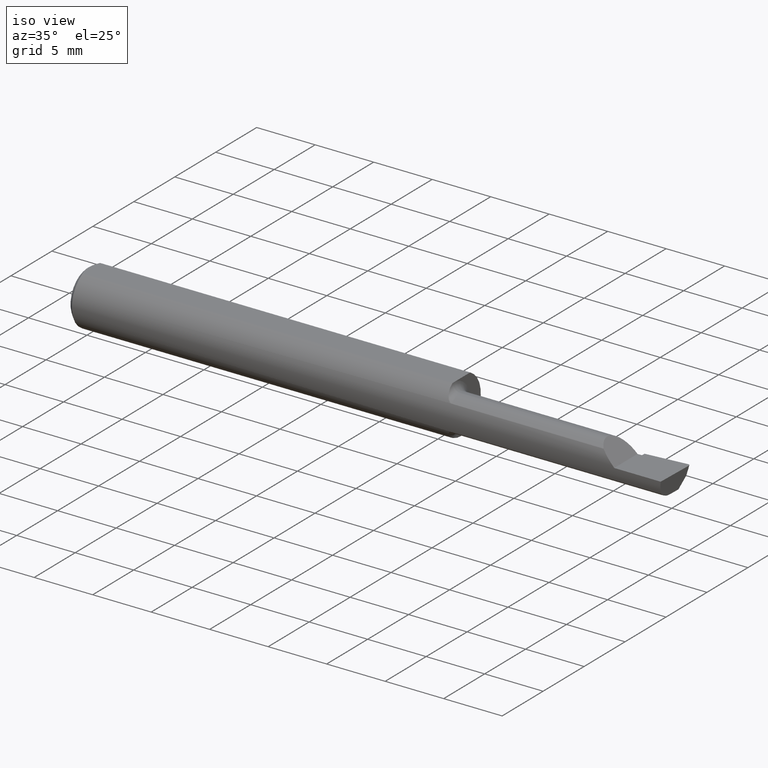
[diagram: clean part render]
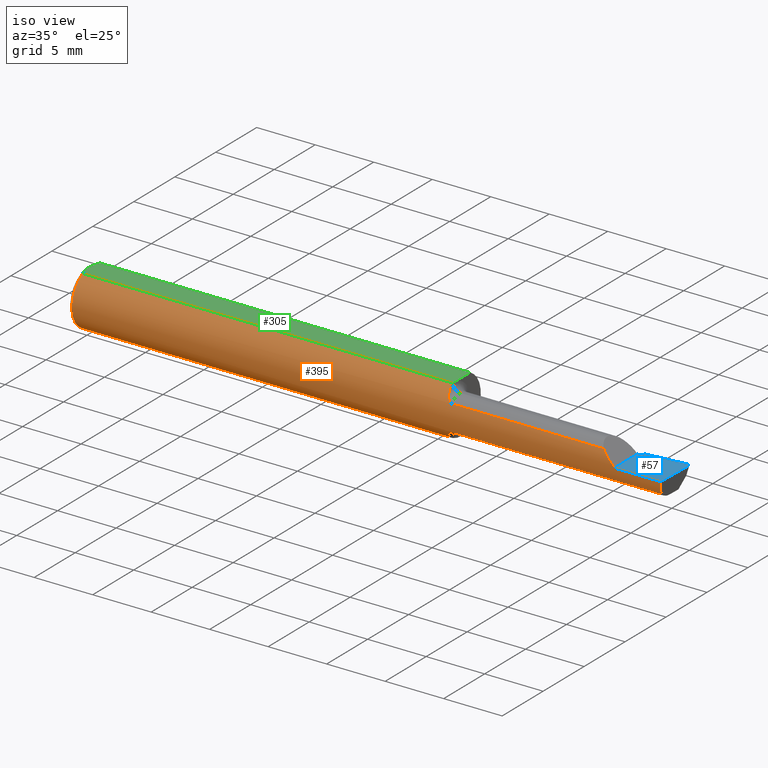
[diagram: same view with three faces highlighted in distinct colors, each labeled with its STEP entity id]
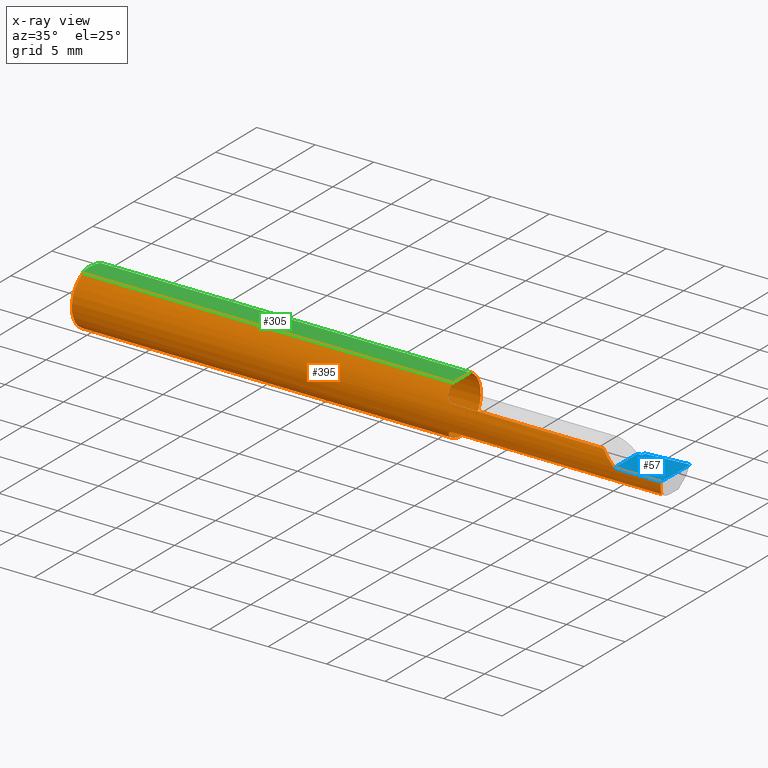
[diagram: x-ray of the same camera — body ghosted, the three highlighted faces saturated]
A machine part, iso view with three faces highlighted in distinct colors.
The next image is the same camera in x-ray (body ghosted, the three faces saturated) — at least one of them is partly hidden behind the body in this view.
Their STEP definitions:

[orange] entity #395 — the highlighted cylindrical surface (edge-blend (fillet) strip) has radius 2.3774 mm, axis along (-1, -0, -0).
#13 = EDGE_CURVE ( 'NONE', #111, #15, #19, .T. ) ;
#14 = CYLINDRICAL_SURFACE ( 'NONE', #185, 0.09360000000000001652 ) ;
#15 = VERTEX_POINT ( 'NONE', #342 ) ;
#19 =( BOUNDED_CURVE ( )  B_SPLINE_CURVE ( 3, ( #313, #507, #203, #131 ),
 .UNSPECIFIED., .F., .T. ) 
 B_SPLINE_CURVE_WITH_KNOTS ( ( 4, 4 ),
 ( 0.8819507499627846636, 1.360746882514781042 ),
 .UNSPECIFIED. ) 
 CURVE ( )  GEOMETRIC_REPRESENTATION_ITEM ( )  RATIONAL_B_SPLINE_CURVE ( ( 1.000000000000000000, 0.9809872534005956712, 0.9809872534005956712, 1.000000000000000000 ) ) 
 REPRESENTATION_ITEM ( '' )  );
#33 = CARTESIAN_POINT ( 'NONE',  ( 1.260121283746728604, -0.04659318327468391085, -0.08137765652544191874 ) ) ;
#34 = CARTESIAN_POINT ( 'NONE',  ( 1.569999999999999840, -0.08307469879518077083, -0.04312255117789288994 ) ) ;
#35 = CARTESIAN_POINT ( 'NONE',  ( 1.260006719116742557, -0.04082489400077272956, -0.08423096411932437522 ) ) ;
#40 = CARTESIAN_POINT ( 'NONE',  ( 1.260000000000000009, -0.04014498638740782166, -0.08455714216888012003 ) ) ;
#65 = CARTESIAN_POINT ( 'NONE',  ( 1.260000000000000009, -0.03946024096385555846, -0.08487549341873928954 ) ) ;
#73 = ORIENTED_EDGE ( 'NONE', *, *, #670, .T. ) ;
#86 = CARTESIAN_POINT ( 'NONE',  ( 0.01499999999999999598, 0.0000000000000000000, 0.0000000000000000000 ) ) ;
#95 = EDGE_LOOP ( 'NONE', ( #631, #499, #143, #73, #709, #354, #351, #378, #187, #657, #216, #164, #308 ) ) ;
#99 = CARTESIAN_POINT ( 'NONE',  ( 1.824917075065774830, -0.09360000000000001652, 0.01508292493422499526 ) ) ;
#101 = EDGE_CURVE ( 'NONE', #623, #433, #225, .T. ) ;
#104 = LINE ( 'NONE', #338, #390 ) ;
#111 = VERTEX_POINT ( 'NONE', #591 ) ;
#120 = AXIS2_PLACEMENT_3D ( 'NONE', #86, #205, #421 ) ;
#130 = DIRECTION ( 'NONE',  ( -1.000000000000000000, -0.0000000000000000000, -0.0000000000000000000 ) ) ;
#131 = CARTESIAN_POINT ( 'NONE',  ( 1.996386342823452065, -0.09360000000000009979, -6.634435288474567089E-17 ) ) ;
#133 = CARTESIAN_POINT ( 'NONE',  ( 1.269277238843646405, -0.07518688180277831312, 0.05595855205935828386 ) ) ;
#134 = CARTESIAN_POINT ( 'NONE',  ( 1.260020127471513041, -0.04150000000000001604, -0.08389702020930184245 ) ) ;
#139 = VERTEX_POINT ( 'NONE', #261 ) ;
#143 = ORIENTED_EDGE ( 'NONE', *, *, #178, .T. ) ;
#144 = CARTESIAN_POINT ( 'NONE',  ( 0.0000000000000000000, 0.0000000000000000000, 0.0000000000000000000 ) ) ;
#148 =( BOUNDED_CURVE ( )  B_SPLINE_CURVE ( 3, ( #485, #99, #589, #278 ),
 .UNSPECIFIED., .F., .T. ) 
 B_SPLINE_CURVE_WITH_KNOTS ( ( 4, 4 ),
 ( 4.712388980384689674, 5.191185112936686608 ),
 .UNSPECIFIED. ) 
 CURVE ( )  GEOMETRIC_REPRESENTATION_ITEM ( )  RATIONAL_B_SPLINE_CURVE ( ( 1.000000000000000000, 0.9809872534005956712, 0.9809872534005956712, 1.000000000000000000 ) ) 
 REPRESENTATION_ITEM ( '' )  );
#158 = EDGE_CURVE ( 'NONE', #433, #673, #179, .T. ) ;
#161 = EDGE_CURVE ( 'NONE', #285, #482, #280, .T. ) ;
#164 = ORIENTED_EDGE ( 'NONE', *, *, #161, .F. ) ;
#171 = B_SPLINE_CURVE_WITH_KNOTS ( 'NONE', 3,
 ( #546, #269, #531, #476, #474, #703, #469, #432, #471, #428, #33, #708 ),
 .UNSPECIFIED., .F., .F.,
 ( 4, 2, 2, 2, 2, 4 ),
 ( 1.963546462201886498E-07, 0.0002171101490734174422, 0.0004340239435006147282, 0.0008678515323550088124, 0.001301679121209403005, 0.001735506710063797415 ),
 .UNSPECIFIED. ) ;
#177 = CARTESIAN_POINT ( 'NONE',  ( 1.273723886093772295, -0.07921817987516426018, 0.04991299092638452894 ) ) ;
#178 = EDGE_CURVE ( 'NONE', #15, #240, #688, .T. ) ;
#179 = CIRCLE ( 'NONE', #120, 0.09360000000000001652 ) ;
#185 = AXIS2_PLACEMENT_3D ( 'NONE', #144, #386, #448 ) ;
#186 = CARTESIAN_POINT ( 'NONE',  ( 1.260661035553280129, -0.05185656404764085042, 0.07811662714540888730 ) ) ;
#187 = ORIENTED_EDGE ( 'NONE', *, *, #101, .F. ) ;
#196 = VECTOR ( 'NONE', #293, 39.37007874015748143 ) ;
#203 = CARTESIAN_POINT ( 'NONE',  ( 1.994533757673610408, -0.09360000000000001652, -0.01508292493422509067 ) ) ;
#205 = DIRECTION ( 'NONE',  ( -1.000000000000000000, -0.0000000000000000000, -0.0000000000000000000 ) ) ;
#207 = EDGE_CURVE ( 'NONE', #139, #285, #171, .T. ) ;
#208 = CARTESIAN_POINT ( 'NONE',  ( 5.659797890829555466E-31, -0.09359999999999998876, 1.030335658007946046E-15 ) ) ;
#209 = DIRECTION ( 'NONE',  ( -1.000000000000000000, -0.0000000000000000000, -0.0000000000000000000 ) ) ;
#216 = ORIENTED_EDGE ( 'NONE', *, *, #326, .F. ) ;
#222 = LINE ( 'NONE', #566, #416 ) ;
#223 = VECTOR ( 'NONE', #260, 39.37007874015748143 ) ;
#225 = CIRCLE ( 'NONE', #457, 0.09360000000000001652 ) ;
#235 = CARTESIAN_POINT ( 'NONE',  ( 1.796877448822106649, -0.08307469879518082634, 0.04312255117789281361 ) ) ;
#240 = VERTEX_POINT ( 'NONE', #515 ) ;
#242 = EDGE_CURVE ( 'NONE', #588, #275, #317, .T. ) ;
#258 = CARTESIAN_POINT ( 'NONE',  ( 1.569999999999999840, -0.08307469879518077083, 0.04312255117789288994 ) ) ;
#259 = CARTESIAN_POINT ( 'NONE',  ( 1.284999999999999920, -0.08307469879518036837, 0.04312255117789322995 ) ) ;
#260 = DIRECTION ( 'NONE',  ( -1.000000000000000000, -0.0000000000000000000, -0.0000000000000000000 ) ) ;
#261 = CARTESIAN_POINT ( 'NONE',  ( 1.284999999999999920, -0.08307469879518065980, -0.04312255117789294545 ) ) ;
#269 = CARTESIAN_POINT ( 'NONE',  ( 1.282100790213033914, -0.08307469879518072919, -0.04312255117789300096 ) ) ;
#275 = VERTEX_POINT ( 'NONE', #235 ) ;
#278 = CARTESIAN_POINT ( 'NONE',  ( 1.796877448822106649, -0.08307469879518082634, 0.04312255117789281361 ) ) ;
#280 = B_SPLINE_CURVE_WITH_KNOTS ( 'NONE', 3,
 ( #418, #35, #40, #415 ),
 .UNSPECIFIED., .F., .F.,
 ( 4, 4 ),
 ( 0.001735506710063797415, 0.001793010945052100642 ),
 .UNSPECIFIED. ) ;
#285 = VERTEX_POINT ( 'NONE', #134 ) ;
#293 = DIRECTION ( 'NONE',  ( 1.000000000000000000, 0.0000000000000000000, 0.0000000000000000000 ) ) ;
#308 = ORIENTED_EDGE ( 'NONE', *, *, #207, .F. ) ;
#313 = CARTESIAN_POINT ( 'NONE',  ( 1.991365359011875169, -0.08307469879518077083, -0.04312255117789288994 ) ) ;
#317 = LINE ( 'NONE', #258, #196 ) ;
#325 = CARTESIAN_POINT ( 'NONE',  ( 1.260033712670299622, -0.04209513036081732190, 0.08360000000000000764 ) ) ;
#326 = EDGE_CURVE ( 'NONE', #482, #518, #599, .T. ) ;
#328 = VECTOR ( 'NONE', #209, 39.37007874015748143 ) ;
#338 = CARTESIAN_POINT ( 'NONE',  ( 0.0000000000000000000, -0.04209513035969835587, 0.08360000000000000764 ) ) ;
#342 = CARTESIAN_POINT ( 'NONE',  ( 1.996386342823452065, -0.09360000000000009979, -6.634435288474567089E-17 ) ) ;
#351 = ORIENTED_EDGE ( 'NONE', *, *, #420, .T. ) ;
#354 = ORIENTED_EDGE ( 'NONE', *, *, #400, .F. ) ;
#370 = CARTESIAN_POINT ( 'NONE',  ( 0.01499999999999999598, 0.04209513035969837669, 0.08360000000000000764 ) ) ;
#372 = CARTESIAN_POINT ( 'NONE',  ( 1.284999999999999920, -0.08307469879518036837, 0.04312255117789322995 ) ) ;
#378 = ORIENTED_EDGE ( 'NONE', *, *, #158, .F. ) ;
#386 = DIRECTION ( 'NONE',  ( -1.000000000000000000, -0.0000000000000000000, -0.0000000000000000000 ) ) ;
#390 = VECTOR ( 'NONE', #130, 39.37007874015748143 ) ;
#395 = ADVANCED_FACE ( 'NONE', ( #549 ), #14, .T. ) ;
#397 = DIRECTION ( 'NONE',  ( 0.0000000000000000000, 0.0000000000000000000, -1.000000000000000000 ) ) ;
#400 = EDGE_CURVE ( 'NONE', #554, #588, #488, .T. ) ;
#415 = CARTESIAN_POINT ( 'NONE',  ( 1.260000000000000009, -0.03946024096385555846, -0.08487549341873928954 ) ) ;
#416 = VECTOR ( 'NONE', #682, 39.37007874015748143 ) ;
#418 = CARTESIAN_POINT ( 'NONE',  ( 1.260020127471513041, -0.04150000000000001604, -0.08389702020930184245 ) ) ;
#420 = EDGE_CURVE ( 'NONE', #554, #673, #104, .T. ) ;
#421 = DIRECTION ( 'NONE',  ( 0.0000000000000000000, 0.0000000000000000000, 1.000000000000000000 ) ) ;
#428 = CARTESIAN_POINT ( 'NONE',  ( 1.260604804002112278, -0.05145819953596710017, -0.07838465384289880489 ) ) ;
#432 = CARTESIAN_POINT ( 'NONE',  ( 1.263605992736884120, -0.06448586599545319542, -0.06805619079784645808 ) ) ;
#433 = VERTEX_POINT ( 'NONE', #621 ) ;
#446 = CARTESIAN_POINT ( 'NONE',  ( 1.262429122971395090, -0.06066239981301106005, 0.07149394324226567010 ) ) ;
#448 = DIRECTION ( 'NONE',  ( 0.0000000000000000000, 0.0000000000000000000, 1.000000000000000000 ) ) ;
#450 = CARTESIAN_POINT ( 'NONE',  ( 1.260033712670299622, -0.04209513036081732190, 0.08360000000000000764 ) ) ;
#456 = CARTESIAN_POINT ( 'NONE',  ( 1.260163936266329054, -0.04714148439379603484, 0.08105900800344763291 ) ) ;
#457 = AXIS2_PLACEMENT_3D ( 'NONE', #521, #632, #511 ) ;
#461 = EDGE_CURVE ( 'NONE', #623, #518, #222, .T. ) ;
#468 = DIRECTION ( 'NONE',  ( 1.000000000000000000, 0.0000000000000000000, 0.0000000000000000000 ) ) ;
#469 = CARTESIAN_POINT ( 'NONE',  ( 1.267076397983111002, -0.07187891021191473995, -0.06019546731975695952 ) ) ;
#471 = CARTESIAN_POINT ( 'NONE',  ( 1.262355770679723932, -0.06040702343486031162, -0.07171535245186147489 ) ) ;
#474 = CARTESIAN_POINT ( 'NONE',  ( 1.273672693420809132, -0.07917899622880041066, -0.04997532113045970864 ) ) ;
#476 = CARTESIAN_POINT ( 'NONE',  ( 1.275354605856553691, -0.08039319987159054826, -0.04797642756495516109 ) ) ;
#482 = VERTEX_POINT ( 'NONE', #65 ) ;
#485 = CARTESIAN_POINT ( 'NONE',  ( 1.840000000000000080, -0.09360000000000005815, 1.959434878635762025E-17 ) ) ;
#488 = B_SPLINE_CURVE_WITH_KNOTS ( 'NONE', 3,
 ( #450, #456, #186, #446, #497, #674, #133, #177, #721, #672, #525, #259 ),
 .UNSPECIFIED., .F., .F.,
 ( 4, 2, 2, 2, 2, 4 ),
 ( 4.385794399149598316E-07, 0.0004249653867977928727, 0.0008494921941556704678, 0.001274019001513548117, 0.001486282405192480924, 0.001698545808871413949 ),
 .UNSPECIFIED. ) ;
#497 = CARTESIAN_POINT ( 'NONE',  ( 1.263721006865968333, -0.06478644025721978783, 0.06776242552087055615 ) ) ;
#499 = ORIENTED_EDGE ( 'NONE', *, *, #13, .T. ) ;
#500 = CARTESIAN_POINT ( 'NONE',  ( 0.01499999999999999944, -0.04209513035969835587, 0.08360000000000000764 ) ) ;
#503 = CARTESIAN_POINT ( 'NONE',  ( 1.260000000000000009, 0.0000000000000000000, 0.0000000000000000000 ) ) ;
#507 = CARTESIAN_POINT ( 'NONE',  ( 1.992827658777091893, -0.09002356847881787250, -0.02973569812382168345 ) ) ;
#511 = DIRECTION ( 'NONE',  ( 0.0000000000000000000, 0.0000000000000000000, 1.000000000000000000 ) ) ;
#515 = CARTESIAN_POINT ( 'NONE',  ( 1.840000000000000080, -0.09360000000000005815, 1.959434878635762025E-17 ) ) ;
#518 = VERTEX_POINT ( 'NONE', #627 ) ;
#521 = CARTESIAN_POINT ( 'NONE',  ( 0.01499999999999999598, 0.0000000000000000000, 0.0000000000000000000 ) ) ;
#525 = CARTESIAN_POINT ( 'NONE',  ( 1.282123707331576545, -0.08307469879541803937, 0.04312255117743599153 ) ) ;
#531 = CARTESIAN_POINT ( 'NONE',  ( 1.279498465877713986, -0.08233174416856381406, -0.04456779206614402966 ) ) ;
#546 = CARTESIAN_POINT ( 'NONE',  ( 1.284999999999999920, -0.08307469879518065980, -0.04312255117789294545 ) ) ;
#549 = FACE_OUTER_BOUND ( 'NONE', #95, .T. ) ;
#554 = VERTEX_POINT ( 'NONE', #325 ) ;
#566 = CARTESIAN_POINT ( 'NONE',  ( 0.0000000000000000000, 0.04209513035969837669, 0.08360000000000000764 ) ) ;
#588 = VERTEX_POINT ( 'NONE', #372 ) ;
#589 = CARTESIAN_POINT ( 'NONE',  ( 1.810264301876177928, -0.09002356847881790025, 0.02973569812382162794 ) ) ;
#591 = CARTESIAN_POINT ( 'NONE',  ( 1.991365359011875169, -0.08307469879518077083, -0.04312255117789288994 ) ) ;
#599 = CIRCLE ( 'NONE', #637, 0.09360000000000001652 ) ;
#621 = CARTESIAN_POINT ( 'NONE',  ( 0.01499999999999999598, 0.0000000000000000000, -0.09360000000000001652 ) ) ;
#623 = VERTEX_POINT ( 'NONE', #370 ) ;
#627 = CARTESIAN_POINT ( 'NONE',  ( 1.260000000000000009, 0.04209513035969836975, 0.08360000000000000764 ) ) ;
#631 = ORIENTED_EDGE ( 'NONE', *, *, #658, .F. ) ;
#632 = DIRECTION ( 'NONE',  ( -1.000000000000000000, -0.0000000000000000000, -0.0000000000000000000 ) ) ;
#637 = AXIS2_PLACEMENT_3D ( 'NONE', #503, #468, #397 ) ;
#657 = ORIENTED_EDGE ( 'NONE', *, *, #461, .T. ) ;
#658 = EDGE_CURVE ( 'NONE', #111, #139, #698, .T. ) ;
#670 = EDGE_CURVE ( 'NONE', #240, #275, #148, .T. ) ;
#672 = CARTESIAN_POINT ( 'NONE',  ( 1.279521451227074280, -0.08233651528524262020, 0.04455777109846688344 ) ) ;
#673 = VERTEX_POINT ( 'NONE', #500 ) ;
#674 = CARTESIAN_POINT ( 'NONE',  ( 1.267169981118041910, -0.07201923175909116792, 0.06001882546754936515 ) ) ;
#682 = DIRECTION ( 'NONE',  ( 1.000000000000000000, 0.0000000000000000000, 0.0000000000000000000 ) ) ;
#688 = LINE ( 'NONE', #208, #223 ) ;
#698 = LINE ( 'NONE', #34, #328 ) ;
#703 = CARTESIAN_POINT ( 'NONE',  ( 1.269237437666585588, -0.07513599091568998189, -0.05602756047418853275 ) ) ;
#708 = CARTESIAN_POINT ( 'NONE',  ( 1.260020127471513041, -0.04150000000000001604, -0.08389702020930184245 ) ) ;
#709 = ORIENTED_EDGE ( 'NONE', *, *, #242, .F. ) ;
#721 = CARTESIAN_POINT ( 'NONE',  ( 1.275413575230843533, -0.08042664989327173719, 0.04791921015131045403 ) ) ;

[blue] entity #57 — the highlighted planar face has unit normal (-0, 0, -1).
#5 = VERTEX_POINT ( 'NONE', #66 ) ;
#11 = CARTESIAN_POINT ( 'NONE',  ( 1.854999999999999982, 0.03043808801135922115, 1.030335937757294514E-15 ) ) ;
#15 = VERTEX_POINT ( 'NONE', #342 ) ;
#25 = ORIENTED_EDGE ( 'NONE', *, *, #53, .F. ) ;
#28 = CARTESIAN_POINT ( 'NONE',  ( 1.854999999999999982, -0.2500000000000000555, 1.135460985248596835E-17 ) ) ;
#38 = VERTEX_POINT ( 'NONE', #11 ) ;
#42 = VECTOR ( 'NONE', #718, 39.37007874015748854 ) ;
#46 = VECTOR ( 'NONE', #204, 39.37007874015748143 ) ;
#47 = VERTEX_POINT ( 'NONE', #429 ) ;
#53 = EDGE_CURVE ( 'NONE', #399, #38, #121, .T. ) ;
#57 = ADVANCED_FACE ( 'NONE', ( #160 ), #570, .F. ) ;
#66 = CARTESIAN_POINT ( 'NONE',  ( 1.999806390372779408, 0.03700634663142107761, -6.825079363098308080E-17 ) ) ;
#75 = ORIENTED_EDGE ( 'NONE', *, *, #206, .F. ) ;
#87 = CARTESIAN_POINT ( 'NONE',  ( 2.000000000000000000, -0.2500000000000000555, -6.829619984160658046E-17 ) ) ;
#121 = LINE ( 'NONE', #28, #422 ) ;
#151 = CARTESIAN_POINT ( 'NONE',  ( 5.659797890829555466E-31, 0.01839999999999995806, 1.030335658007946046E-15 ) ) ;
#157 = DIRECTION ( 'NONE',  ( -5.493159289247764363E-16, 0.0000000000000000000, -1.000000000000000000 ) ) ;
#160 = FACE_OUTER_BOUND ( 'NONE', #513, .T. ) ;
#167 = DIRECTION ( 'NONE',  ( 1.000000000000000000, 0.0000000000000000000, 0.0000000000000000000 ) ) ;
#178 = EDGE_CURVE ( 'NONE', #15, #240, #688, .T. ) ;
#188 = ORIENTED_EDGE ( 'NONE', *, *, #264, .F. ) ;
#204 = DIRECTION ( 'NONE',  ( -0.0000000000000000000, 1.000000000000000000, -0.0000000000000000000 ) ) ;
#206 = EDGE_CURVE ( 'NONE', #38, #641, #396, .T. ) ;
#208 = CARTESIAN_POINT ( 'NONE',  ( 5.659797890829555466E-31, -0.09359999999999998876, 1.030335658007946046E-15 ) ) ;
#223 = VECTOR ( 'NONE', #260, 39.37007874015748143 ) ;
#234 = CARTESIAN_POINT ( 'NONE',  ( 1.992906680581892465, 0.04371699102466924253, -6.439972649628884200E-17 ) ) ;
#240 = VERTEX_POINT ( 'NONE', #515 ) ;
#260 = DIRECTION ( 'NONE',  ( -1.000000000000000000, -0.0000000000000000000, -0.0000000000000000000 ) ) ;
#264 = EDGE_CURVE ( 'NONE', #240, #681, #625, .T. ) ;
#286 = ORIENTED_EDGE ( 'NONE', *, *, #680, .F. ) ;
#287 = EDGE_CURVE ( 'NONE', #5, #47, #430, .T. ) ;
#292 = DIRECTION ( 'NONE',  ( 0.0000000000000000000, 1.000000000000000000, 0.0000000000000000000 ) ) ;
#298 = LINE ( 'NONE', #151, #663 ) ;
#300 = CARTESIAN_POINT ( 'NONE',  ( 1.840000000000000080, -0.2500000000000000555, 1.959434878635762025E-17 ) ) ;
#329 = CARTESIAN_POINT ( 'NONE',  ( 1.840000000000000080, 0.01839999999999989908, 1.959434878635762025E-17 ) ) ;
#336 = CARTESIAN_POINT ( 'NONE',  ( 1.997312560284823402, 0.04374616680637225669, -7.052611464845214313E-17 ) ) ;
#339 = EDGE_CURVE ( 'NONE', #47, #641, #572, .T. ) ;
#342 = CARTESIAN_POINT ( 'NONE',  ( 1.996386342823452065, -0.09360000000000009979, -6.634435288474567089E-17 ) ) ;
#345 = CARTESIAN_POINT ( 'NONE',  ( 1.992296147241039872, -0.2497982675158734178, -6.406435080701882457E-17 ) ) ;
#349 = ORIENTED_EDGE ( 'NONE', *, *, #339, .T. ) ;
#379 = VECTOR ( 'NONE', #585, 39.37007874015748143 ) ;
#392 = CARTESIAN_POINT ( 'NONE',  ( 1.993310817358676212, 0.04374616680637216648, -6.832789351565719796E-17 ) ) ;
#396 = LINE ( 'NONE', #699, #379 ) ;
#399 = VERTEX_POINT ( 'NONE', #454 ) ;
#422 = VECTOR ( 'NONE', #292, 39.37007874015748143 ) ;
#429 = CARTESIAN_POINT ( 'NONE',  ( 1.993512870449313912, 0.04374616680637216648, -7.256471233170699482E-17 ) ) ;
#430 =( BOUNDED_CURVE ( )  B_SPLINE_CURVE ( 3, ( #671, #462, #336, #624 ),
 .UNSPECIFIED., .F., .F. ) 
 B_SPLINE_CURVE_WITH_KNOTS ( ( 4, 4 ),
 ( 1.953092279228458406, 3.511516179717707686 ),
 .UNSPECIFIED. ) 
 CURVE ( )  GEOMETRIC_REPRESENTATION_ITEM ( )  RATIONAL_B_SPLINE_CURVE ( ( 1.000000000000000000, 0.8076450242550430314, 0.8076450242550430314, 1.000000000000000000 ) ) 
 REPRESENTATION_ITEM ( '' )  );
#452 = CARTESIAN_POINT ( 'NONE',  ( 1.993512870449313912, 0.04374616680637216648, -7.256471233170699482E-17 ) ) ;
#454 = CARTESIAN_POINT ( 'NONE',  ( 1.854999999999999982, 0.01839999999999999969, 1.030335658007946637E-15 ) ) ;
#462 = CARTESIAN_POINT ( 'NONE',  ( 1.999910038027503001, 0.04096449087509797249, -7.195295054753363913E-17 ) ) ;
#480 = ORIENTED_EDGE ( 'NONE', *, *, #178, .F. ) ;
#501 = ORIENTED_EDGE ( 'NONE', *, *, #535, .T. ) ;
#504 = AXIS2_PLACEMENT_3D ( 'NONE', #87, #157, #679 ) ;
#510 = ORIENTED_EDGE ( 'NONE', *, *, #287, .T. ) ;
#513 = EDGE_LOOP ( 'NONE', ( #501, #510, #349, #75, #25, #286, #188, #480 ) ) ;
#515 = CARTESIAN_POINT ( 'NONE',  ( 1.840000000000000080, -0.09360000000000005815, 1.959434878635762025E-17 ) ) ;
#535 = EDGE_CURVE ( 'NONE', #15, #5, #619, .T. ) ;
#563 = CARTESIAN_POINT ( 'NONE',  ( 1.993108609909222784, 0.04373643460740118949, -6.821681774272507613E-17 ) ) ;
#570 = PLANE ( 'NONE',  #504 ) ;
#572 =( BOUNDED_CURVE ( )  B_SPLINE_CURVE ( 3, ( #452, #392, #563, #635 ),
 .UNSPECIFIED., .F., .F. ) 
 B_SPLINE_CURVE_WITH_KNOTS ( ( 4, 4 ),
 ( 3.511516179717707686, 3.604018710826265792 ),
 .UNSPECIFIED. ) 
 CURVE ( )  GEOMETRIC_REPRESENTATION_ITEM ( )  RATIONAL_B_SPLINE_CURVE ( ( 1.000000000000000000, 0.9992870672494014173, 0.9992870672494014173, 1.000000000000000000 ) ) 
 REPRESENTATION_ITEM ( '' )  );
#585 = DIRECTION ( 'NONE',  ( 0.9953961983671787417, 0.09584575252022466130, -5.467869873542577569E-16 ) ) ;
#619 = LINE ( 'NONE', #345, #42 ) ;
#624 = CARTESIAN_POINT ( 'NONE',  ( 1.993512870449313912, 0.04374616680637216648, -7.256471233170699482E-17 ) ) ;
#625 = LINE ( 'NONE', #300, #46 ) ;
#635 = CARTESIAN_POINT ( 'NONE',  ( 1.992906680581892465, 0.04371699102466924253, -6.439972649628884200E-17 ) ) ;
#641 = VERTEX_POINT ( 'NONE', #234 ) ;
#663 = VECTOR ( 'NONE', #167, 39.37007874015748143 ) ;
#671 = CARTESIAN_POINT ( 'NONE',  ( 1.999806390372779408, 0.03700634663142107761, -6.825079363098308080E-17 ) ) ;
#679 = DIRECTION ( 'NONE',  ( -1.000000000000000000, 0.0000000000000000000, 5.493159289247764363E-16 ) ) ;
#680 = EDGE_CURVE ( 'NONE', #681, #399, #298, .T. ) ;
#681 = VERTEX_POINT ( 'NONE', #329 ) ;
#688 = LINE ( 'NONE', #208, #223 ) ;
#699 = CARTESIAN_POINT ( 'NONE',  ( 1.107894390816139163, -0.04150000000000000216, 4.217516215662293437E-16 ) ) ;
#718 = DIRECTION ( 'NONE',  ( 0.02617694830786378504, 0.9996573249755575929, -1.459184416195593542E-17 ) ) ;

[green] entity #305 — the highlighted planar face has unit normal (0, -0, -1).
#17 = VERTEX_POINT ( 'NONE', #364 ) ;
#36 = ORIENTED_EDGE ( 'NONE', *, *, #483, .F. ) ;
#58 = VECTOR ( 'NONE', #719, 39.37007874015748143 ) ;
#71 = DIRECTION ( 'NONE',  ( 0.0000000000000000000, -1.189000693621284344E-16, -1.000000000000000000 ) ) ;
#94 = CARTESIAN_POINT ( 'NONE',  ( 0.009539353699420832430, -0.02875682547511371895, 0.08360000000000000764 ) ) ;
#96 = VERTEX_POINT ( 'NONE', #257 ) ;
#102 = CARTESIAN_POINT ( 'NONE',  ( 1.260033822879743859, -0.04150000000000000216, 0.08360000000000000764 ) ) ;
#104 = LINE ( 'NONE', #338, #390 ) ;
#114 = ORIENTED_EDGE ( 'NONE', *, *, #447, .F. ) ;
#119 = CARTESIAN_POINT ( 'NONE',  ( 1.260033822879743415, -0.04159918775988085543, 0.08360000000000000764 ) ) ;
#130 = DIRECTION ( 'NONE',  ( -1.000000000000000000, -0.0000000000000000000, -0.0000000000000000000 ) ) ;
#141 = CARTESIAN_POINT ( 'NONE',  ( 1.260033822879743859, -0.04150000000000000216, 0.08360000000000000764 ) ) ;
#155 = EDGE_CURVE ( 'NONE', #17, #623, #295, .T. ) ;
#159 = CARTESIAN_POINT ( 'NONE',  ( 0.01499999999999999944, -0.04209513035969835587, 0.08360000000000000764 ) ) ;
#183 = CARTESIAN_POINT ( 'NONE',  ( 1.260033749376514578, -0.04199594133480308300, 0.08360000000000003539 ) ) ;
#194 = CARTESIAN_POINT ( 'NONE',  ( 2.000000000000000000, 0.1436000000000000332, 0.08359999999999999376 ) ) ;
#197 = ORIENTED_EDGE ( 'NONE', *, *, #727, .F. ) ;
#213 = CARTESIAN_POINT ( 'NONE',  ( 0.005000000000000223883, 0.007308422719211823959, 0.08360000000000000764 ) ) ;
#222 = LINE ( 'NONE', #566, #416 ) ;
#232 = ORIENTED_EDGE ( 'NONE', *, *, #461, .F. ) ;
#253 = B_SPLINE_CURVE_WITH_KNOTS ( 'NONE', 3,
 ( #159, #424, #94, #655, #606, #602 ),
 .UNSPECIFIED., .F., .F.,
 ( 4, 2, 4 ),
 ( 0.005785415439423114564, 0.006333348270144337384, 0.006881281100865560205 ),
 .UNSPECIFIED. ) ;
#257 = CARTESIAN_POINT ( 'NONE',  ( 1.260000000000000009, -0.02669966216601840289, 0.08360000000000000764 ) ) ;
#276 = EDGE_LOOP ( 'NONE', ( #114, #36, #232, #560, #197, #581, #498 ) ) ;
#295 = B_SPLINE_CURVE_WITH_KNOTS ( 'NONE', 3,
 ( #312, #213, #373, #600, #642, #541 ),
 .UNSPECIFIED., .F., .F.,
 ( 4, 2, 4 ),
 ( 0.006881281100865560205, 0.007427683811376459971, 0.007974086521887359738 ),
 .UNSPECIFIED. ) ;
#301 = CARTESIAN_POINT ( 'NONE',  ( 1.260033712670299622, -0.04209513036081732190, 0.08360000000000000764 ) ) ;
#305 = ADVANCED_FACE ( 'NONE', ( #558 ), #388, .F. ) ;
#312 = CARTESIAN_POINT ( 'NONE',  ( 0.005000000000000236026, 1.025183009042025117E-17, 0.08360000000000000764 ) ) ;
#325 = CARTESIAN_POINT ( 'NONE',  ( 1.260033712670299622, -0.04209513036081732190, 0.08360000000000000764 ) ) ;
#335 = CARTESIAN_POINT ( 'NONE',  ( 1.260010473476444126, -0.03163306423249842569, 0.08360000000000000764 ) ) ;
#338 = CARTESIAN_POINT ( 'NONE',  ( 0.0000000000000000000, -0.04209513035969835587, 0.08360000000000000764 ) ) ;
#350 = CARTESIAN_POINT ( 'NONE',  ( 1.260000000000000009, -0.02669966216601840289, 0.08360000000000000764 ) ) ;
#364 = CARTESIAN_POINT ( 'NONE',  ( 0.005000000000000236026, 1.025183009042025117E-17, 0.08360000000000000764 ) ) ;
#370 = CARTESIAN_POINT ( 'NONE',  ( 0.01499999999999999598, 0.04209513035969837669, 0.08360000000000000764 ) ) ;
#373 = CARTESIAN_POINT ( 'NONE',  ( 0.005981829149300850468, 0.01454044632356567279, 0.08360000000000000764 ) ) ;
#388 = PLANE ( 'NONE',  #604 ) ;
#390 = VECTOR ( 'NONE', #130, 39.37007874015748143 ) ;
#416 = VECTOR ( 'NONE', #682, 39.37007874015748143 ) ;
#420 = EDGE_CURVE ( 'NONE', #554, #673, #104, .T. ) ;
#424 = CARTESIAN_POINT ( 'NONE',  ( 0.01206089165507025739, -0.03555991978469312531, 0.08360000000000000764 ) ) ;
#434 = LINE ( 'NONE', #726, #58 ) ;
#439 = CARTESIAN_POINT ( 'NONE',  ( 1.260000000000000009, -0.02916612216505928140, 0.08360000000000000764 ) ) ;
#442 = CARTESIAN_POINT ( 'NONE',  ( 1.260027419345087329, -0.03656676420729539079, 0.08359999999999997988 ) ) ;
#447 = EDGE_CURVE ( 'NONE', #96, #552, #526, .T. ) ;
#461 = EDGE_CURVE ( 'NONE', #623, #518, #222, .T. ) ;
#464 = CARTESIAN_POINT ( 'NONE',  ( 1.260033804492674436, -0.04179756391388075865, 0.08360000000000000764 ) ) ;
#483 = EDGE_CURVE ( 'NONE', #518, #96, #434, .T. ) ;
#490 = EDGE_CURVE ( 'NONE', #552, #554, #603, .T. ) ;
#498 = ORIENTED_EDGE ( 'NONE', *, *, #490, .F. ) ;
#500 = CARTESIAN_POINT ( 'NONE',  ( 0.01499999999999999944, -0.04209513035969835587, 0.08360000000000000764 ) ) ;
#518 = VERTEX_POINT ( 'NONE', #627 ) ;
#526 = B_SPLINE_CURVE_WITH_KNOTS ( 'NONE', 3,
 ( #350, #439, #335, #442, #668, #676 ),
 .UNSPECIFIED., .F., .F.,
 ( 4, 2, 4 ),
 ( 0.0007618363005527894723, 0.0009495817850258235493, 0.001137327269498857518 ),
 .UNSPECIFIED. ) ;
#541 = CARTESIAN_POINT ( 'NONE',  ( 0.01499999999999999598, 0.04209513035969837669, 0.08360000000000000764 ) ) ;
#552 = VERTEX_POINT ( 'NONE', #102 ) ;
#554 = VERTEX_POINT ( 'NONE', #325 ) ;
#558 = FACE_OUTER_BOUND ( 'NONE', #276, .T. ) ;
#560 = ORIENTED_EDGE ( 'NONE', *, *, #155, .F. ) ;
#566 = CARTESIAN_POINT ( 'NONE',  ( 0.0000000000000000000, 0.04209513035969837669, 0.08360000000000000764 ) ) ;
#581 = ORIENTED_EDGE ( 'NONE', *, *, #420, .F. ) ;
#584 = DIRECTION ( 'NONE',  ( 0.0000000000000000000, 1.000000000000000000, -1.189000693621284344E-16 ) ) ;
#600 = CARTESIAN_POINT ( 'NONE',  ( 0.009492654797564337166, 0.02859466010166625619, 0.08359999999999997988 ) ) ;
#602 = CARTESIAN_POINT ( 'NONE',  ( 0.005000000000000236026, 1.025183009042025117E-17, 0.08360000000000000764 ) ) ;
#603 = B_SPLINE_CURVE_WITH_KNOTS ( 'NONE', 3,
 ( #141, #119, #464, #183, #301 ),
 .UNSPECIFIED., .F., .F.,
 ( 4, 1, 4 ),
 ( 0.001137327269498857518, 0.001144877036812689489, 0.001152426804126521678 ),
 .UNSPECIFIED. ) ;
#604 = AXIS2_PLACEMENT_3D ( 'NONE', #194, #71, #584 ) ;
#606 = CARTESIAN_POINT ( 'NONE',  ( 0.005000000000000228220, -0.007328888879231052964, 0.08360000000000000764 ) ) ;
#623 = VERTEX_POINT ( 'NONE', #370 ) ;
#627 = CARTESIAN_POINT ( 'NONE',  ( 1.260000000000000009, 0.04209513035969836975, 0.08360000000000000764 ) ) ;
#642 = CARTESIAN_POINT ( 'NONE',  ( 0.01203648650249650523, 0.03550565407121123590, 0.08360000000000000764 ) ) ;
#655 = CARTESIAN_POINT ( 'NONE',  ( 0.005975039161239525769, -0.01453776427033148279, 0.08359999999999997988 ) ) ;
#668 = CARTESIAN_POINT ( 'NONE',  ( 1.260033822879743859, -0.03903342675892662594, 0.08360000000000000764 ) ) ;
#673 = VERTEX_POINT ( 'NONE', #500 ) ;
#676 = CARTESIAN_POINT ( 'NONE',  ( 1.260033822879743859, -0.04150000000000000216, 0.08360000000000000764 ) ) ;
#682 = DIRECTION ( 'NONE',  ( 1.000000000000000000, 0.0000000000000000000, 0.0000000000000000000 ) ) ;
#719 = DIRECTION ( 'NONE',  ( 0.0000000000000000000, -1.000000000000000000, 1.189000693621284344E-16 ) ) ;
#726 = CARTESIAN_POINT ( 'NONE',  ( 1.260000000000000009, 0.1436000000000000332, 0.08359999999999999376 ) ) ;
#727 = EDGE_CURVE ( 'NONE', #673, #17, #253, .T. ) ;